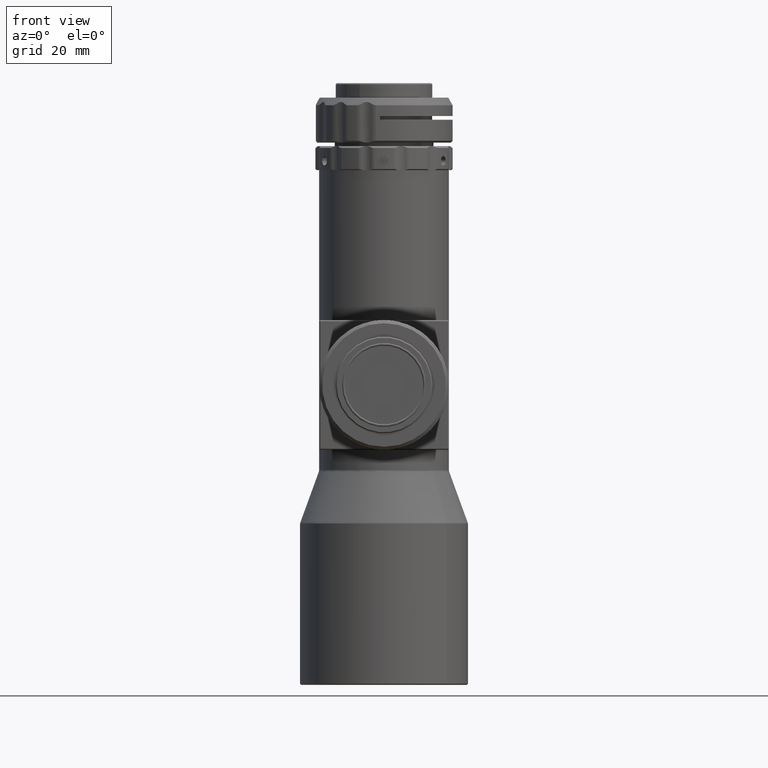
[diagram: clean part render]
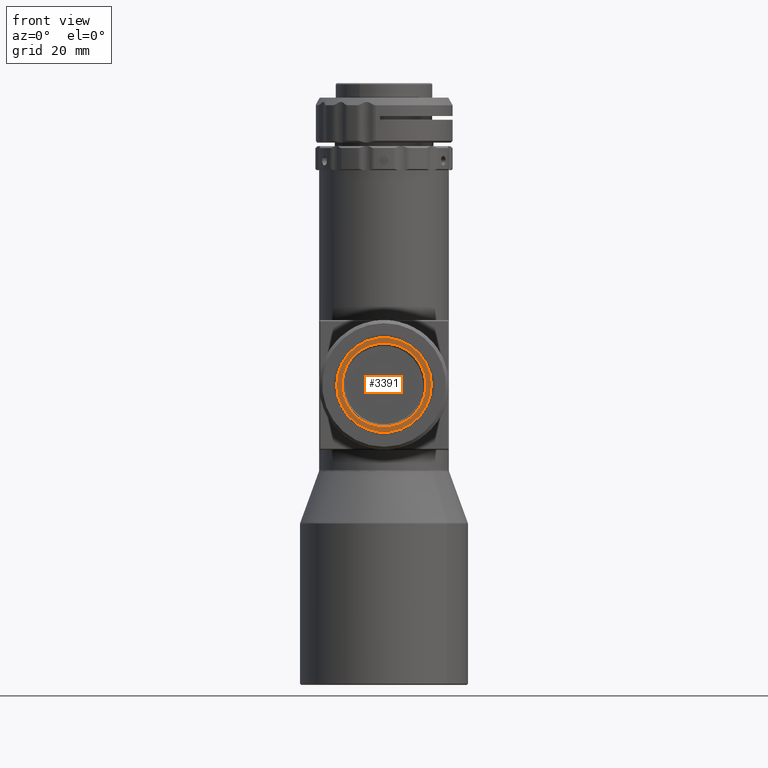
[diagram: same view with one face highlighted and labeled with its STEP entity id]
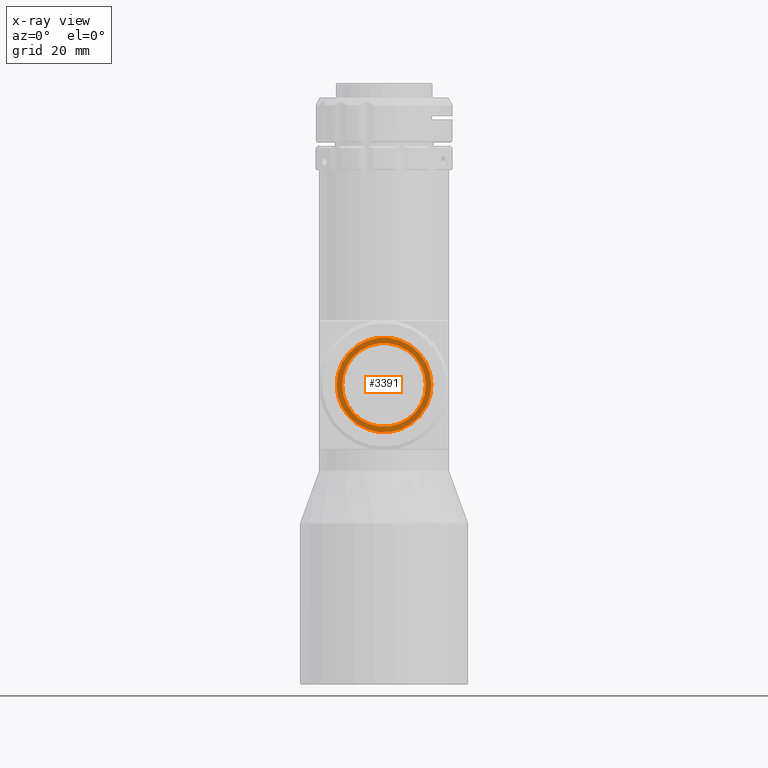
[diagram: x-ray of the same camera — body ghosted, the highlighted face saturated]
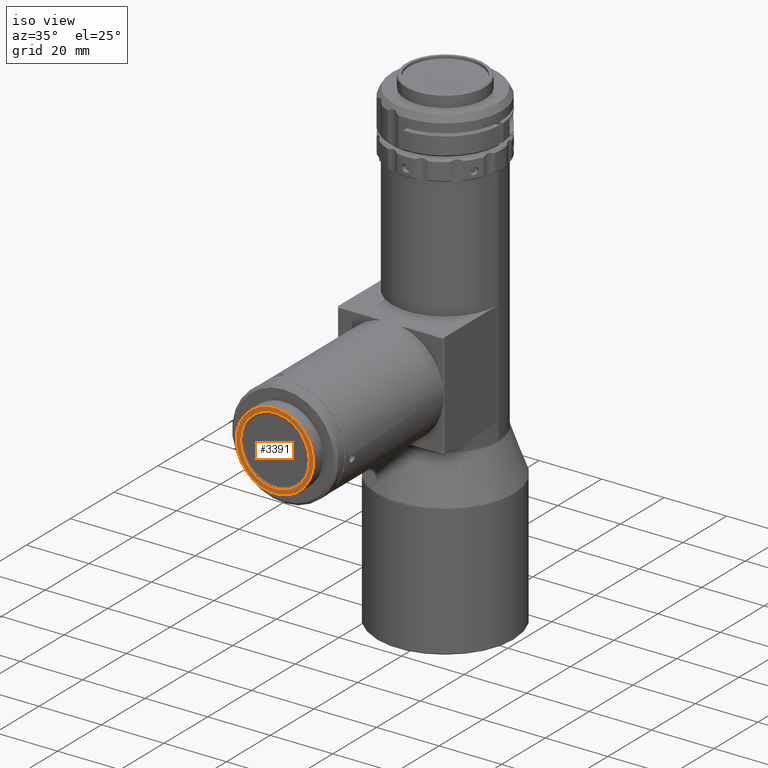
[diagram: same view with one face highlighted and labeled with its STEP entity id]
A machine part, front view. The second image highlights one B-rep face of the part: STEP entity #3391.
The next image is the same camera in x-ray: the body ghosted, the highlighted face saturated — about 0% of this face is hidden behind the body in this view.
A second angle (iso view) of the same face is appended — the face is thin or edge-on in the first view.
In plain terms, the highlighted planar face has unit normal (0, 1, 0).
Its self-contained STEP definition (entity closure, byte-faithful):
#222 = CARTESIAN_POINT ( 'NONE',  ( 1.416491935032150300, -77.86000000000005600, 35.15013761094953500 ) ) ;
#735 = FACE_BOUND ( 'NONE', #755, .T. ) ;
#755 = EDGE_LOOP ( 'NONE', ( #9221, #5660 ) ) ;
#799 = AXIS2_PLACEMENT_3D ( 'NONE', #10376, #7824, #7138 ) ;
#917 = DIRECTION ( 'NONE',  ( 5.551115123125791300E-017, 1.000000000000000000, 2.161748815651540000E-017 ) ) ;
#1455 = DIRECTION ( 'NONE',  ( -0.1142332205671090500, 0.0000000000000000000, -0.9934539603418299800 ) ) ;
#1519 = VERTEX_POINT ( 'NONE', #2186 ) ;
#1834 = EDGE_CURVE ( 'NONE', #6265, #1519, #3590, .T. ) ;
#1966 = CARTESIAN_POINT ( 'NONE',  ( 5.264119527786133000E-016, -77.86000000000005600, 22.83130850271084700 ) ) ;
#2147 = AXIS2_PLACEMENT_3D ( 'NONE', #3089, #4732, #6384 ) ;
#2186 = CARTESIAN_POINT ( 'NONE',  ( -1.256565426238200000, -77.86000000000005600, 11.90331493895072000 ) ) ;
#2902 = FACE_OUTER_BOUND ( 'NONE', #3890, .T. ) ;
#3089 = CARTESIAN_POINT ( 'NONE',  ( 5.264119527786133000E-016, -77.86000000000005600, 22.83130850271084700 ) ) ;
#3354 = EDGE_CURVE ( 'NONE', #9171, #7727, #3697, .T. ) ;
#3391 = ADVANCED_FACE ( 'NONE', ( #2902, #735 ), #4087, .F. ) ;
#3590 = CIRCLE ( 'NONE', #4047, 10.99999999999999600 ) ;
#3697 = CIRCLE ( 'NONE', #2147, 12.39999999999999300 ) ;
#3890 = EDGE_LOOP ( 'NONE', ( #7820, #7584 ) ) ;
#3993 = CARTESIAN_POINT ( 'NONE',  ( 1.256565426238200000, -77.86000000000005600, 33.75930206647097300 ) ) ;
#4047 = AXIS2_PLACEMENT_3D ( 'NONE', #1966, #7662, #7508 ) ;
#4054 = DIRECTION ( 'NONE',  ( -0.1142332205671090400, 2.781719680426725600E-017, -0.9934539603418298700 ) ) ;
#4087 = PLANE ( 'NONE',  #9468 ) ;
#4102 = CIRCLE ( 'NONE', #5731, 12.39999999999999300 ) ;
#4508 = CARTESIAN_POINT ( 'NONE',  ( -1.416491935032151000, -77.86000000000005600, 10.51247939447216100 ) ) ;
#4732 = DIRECTION ( 'NONE',  ( -5.551115123125791300E-017, -1.000000000000000000, -2.161748815651541800E-017 ) ) ;
#5660 = ORIENTED_EDGE ( 'NONE', *, *, #7209, .F. ) ;
#5731 = AXIS2_PLACEMENT_3D ( 'NONE', #9591, #6343, #1455 ) ;
#6188 = CIRCLE ( 'NONE', #799, 10.99999999999999600 ) ;
#6265 = VERTEX_POINT ( 'NONE', #3993 ) ;
#6343 = DIRECTION ( 'NONE',  ( -5.551115123125791300E-017, -1.000000000000000000, -2.161748815651541800E-017 ) ) ;
#6384 = DIRECTION ( 'NONE',  ( -0.1142332205671090500, 0.0000000000000000000, -0.9934539603418299800 ) ) ;
#7138 = DIRECTION ( 'NONE',  ( 0.1142332205671090900, 0.0000000000000000000, 0.9934539603418298700 ) ) ;
#7209 = EDGE_CURVE ( 'NONE', #1519, #6265, #6188, .T. ) ;
#7297 = CARTESIAN_POINT ( 'NONE',  ( -10.92799356376012900, -77.86000000000005600, 24.08787392894904400 ) ) ;
#7508 = DIRECTION ( 'NONE',  ( 0.1142332205671090900, 0.0000000000000000000, 0.9934539603418298700 ) ) ;
#7584 = ORIENTED_EDGE ( 'NONE', *, *, #3354, .T. ) ;
#7662 = DIRECTION ( 'NONE',  ( -5.551115123125791300E-017, -1.000000000000000000, -2.161748815651541800E-017 ) ) ;
#7727 = VERTEX_POINT ( 'NONE', #4508 ) ;
#7820 = ORIENTED_EDGE ( 'NONE', *, *, #9550, .T. ) ;
#7824 = DIRECTION ( 'NONE',  ( -5.551115123125791300E-017, -1.000000000000000000, -2.161748815651541800E-017 ) ) ;
#9171 = VERTEX_POINT ( 'NONE', #222 ) ;
#9221 = ORIENTED_EDGE ( 'NONE', *, *, #1834, .F. ) ;
#9468 = AXIS2_PLACEMENT_3D ( 'NONE', #7297, #917, #4054 ) ;
#9550 = EDGE_CURVE ( 'NONE', #7727, #9171, #4102, .T. ) ;
#9591 = CARTESIAN_POINT ( 'NONE',  ( 5.264119527786133000E-016, -77.86000000000005600, 22.83130850271084700 ) ) ;
#10376 = CARTESIAN_POINT ( 'NONE',  ( 5.264119527786133000E-016, -77.86000000000005600, 22.83130850271084700 ) ) ;